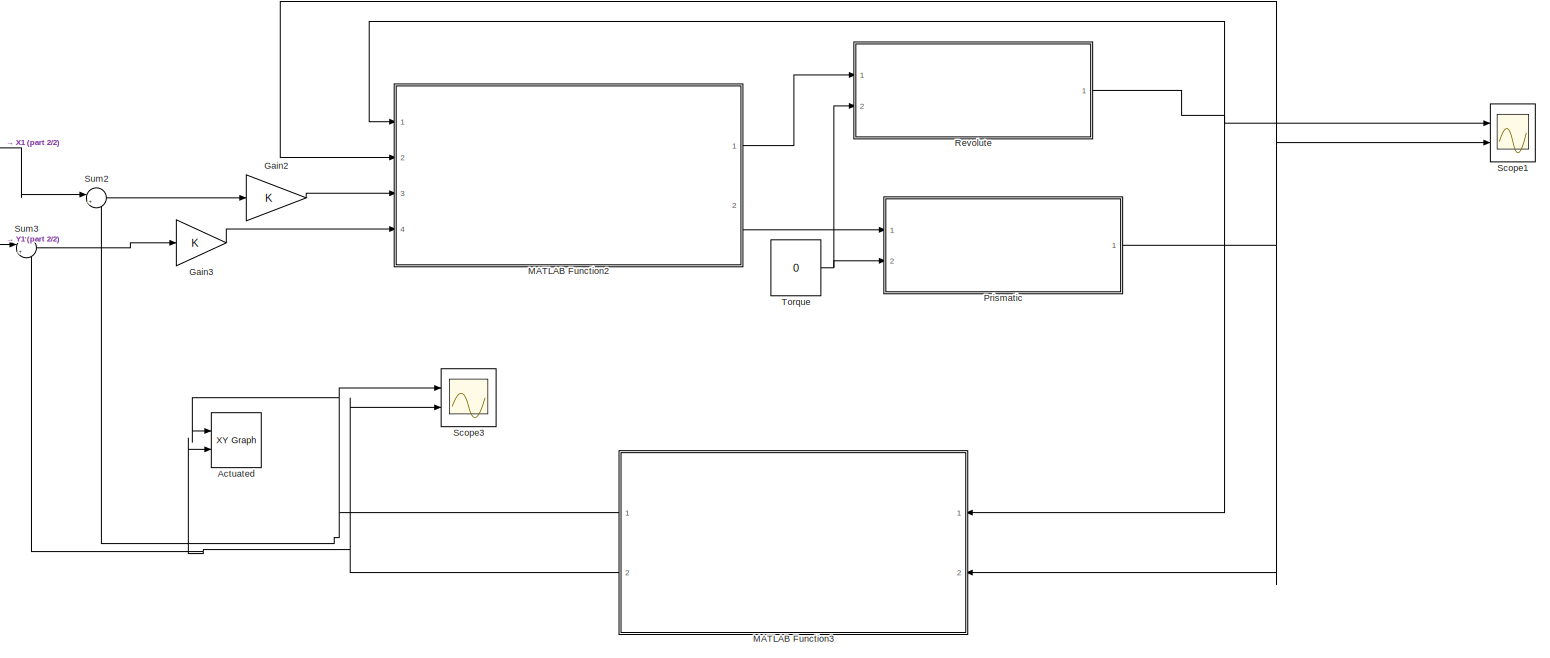
[diagram: root canvas - part 1/2, most of the canvas]
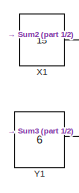
[diagram: root canvas - part 2/2, middle left region]
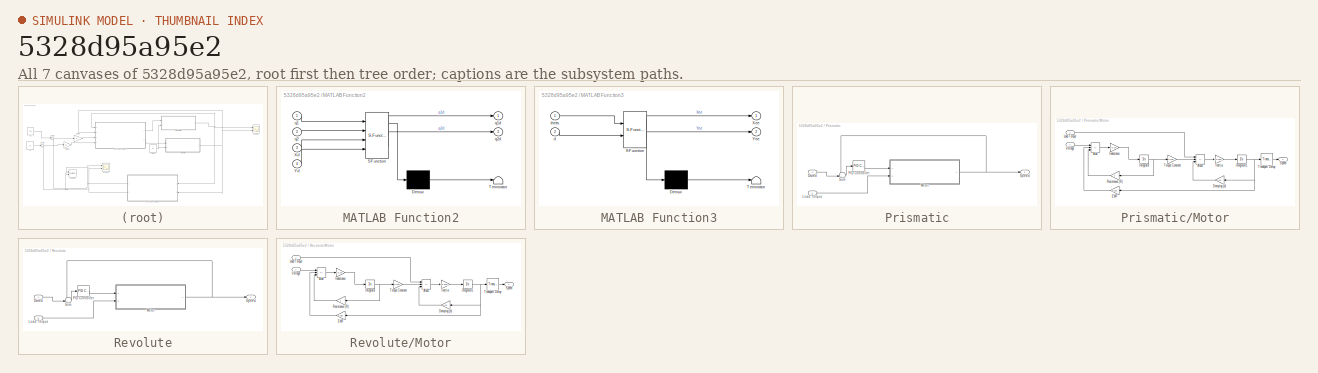
[diagram: thumbnail index - all 7 canvases of the model, root first then tree order]
MODEL slx_5328d95a95e2
KIND model
CONFIG AbsTol = auto
CONFIG EnableMultiTasking = off
CONFIG FixedStep = auto
CONFIG MaxStep = auto
CONFIG MinStep = auto
CONFIG RelTol = 1e-3
CONFIG SampleTimeConstraint = Unconstrained
CONFIG SolverName = VariableStepAuto
CONFIG StartTime = 0.0
CONFIG StopTime = 20
BLOCK [Reference] Actuated  REF=simulink/Sinks/XY Graph
  Ports = [2]
  SourceBlock = simulink/Sinks/XY Graph
  SourceProductBaseCode = SL
  SourceType = XY scope.
BLOCK [Gain] Gain2
BLOCK [Gain] Gain3
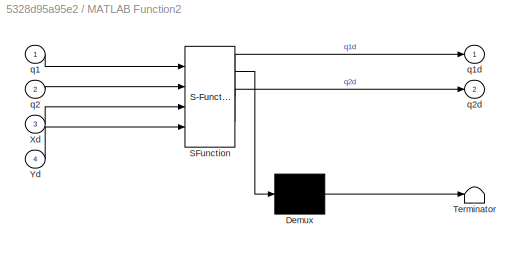
BLOCK [SubSystem] MATLAB Function2
  ErrorFcn = Stateflow.Translate.translate
  PermitHierarchicalResolution = ExplicitOnly
  Ports = [4, 2]
  RequestExecContextInheritance = off
  SFBlockType = MATLAB Function
  TreatAsAtomicUnit = on
BLOCK [Demux] MATLAB Function2/ Demux 
  Outputs = 1
  Ports = [1, 1]
BLOCK [S-Function] MATLAB Function2/ SFunction 
  EnableBusSupport = on
  FunctionName = sf_sfun
  PortCounts = [4 3]
  Ports = [4, 3]
  SFcnIsStateOwnerBlock = off
  SFunctionDeploymentMode = off
  Tag = Stateflow S-Function 3
BLOCK [Terminator] MATLAB Function2/ Terminator 
BLOCK [Inport] MATLAB Function2/Xd
  Port = 3
BLOCK [Inport] MATLAB Function2/Yd
  Port = 4
BLOCK [Inport] MATLAB Function2/q1
BLOCK [Outport] MATLAB Function2/q1d
BLOCK [Inport] MATLAB Function2/q2
  Port = 2
BLOCK [Outport] MATLAB Function2/q2d
  Port = 2
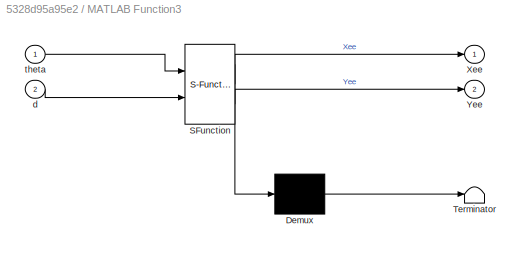
BLOCK [SubSystem] MATLAB Function3
  ErrorFcn = Stateflow.Translate.translate
  NameLocation = top
  PermitHierarchicalResolution = ExplicitOnly
  Ports = [2, 2]
  RequestExecContextInheritance = off
  SFBlockType = MATLAB Function
  TreatAsAtomicUnit = on
BLOCK [Demux] MATLAB Function3/ Demux 
  Outputs = 1
  Ports = [1, 1]
BLOCK [S-Function] MATLAB Function3/ SFunction 
  EnableBusSupport = on
  FunctionName = sf_sfun
  PortCounts = [2 3]
  Ports = [2, 3]
  SFcnIsStateOwnerBlock = off
  SFunctionDeploymentMode = off
  Tag = Stateflow S-Function 4
BLOCK [Terminator] MATLAB Function3/ Terminator 
BLOCK [Outport] MATLAB Function3/Xee
BLOCK [Outport] MATLAB Function3/Yee
  Port = 2
BLOCK [Inport] MATLAB Function3/d
  Port = 2
BLOCK [Inport] MATLAB Function3/theta
BLOCK [SubSystem] Prismatic
  Ports = [2, 1]
  RequestExecContextInheritance = off
BLOCK [Inport] Prismatic/Dsired
BLOCK [Inport] Prismatic/Load Torque 
  Port = 2
BLOCK [SubSystem] Prismatic/Motor
  Ports = [2, 1]
  RequestExecContextInheritance = off
BLOCK [Sum] Prismatic/Motor/Add
  IconShape = rectangular
  Inputs = +--
  Ports = [3, 1]
BLOCK [Sum] Prismatic/Motor/Add1
  IconShape = rectangular
  Inputs = -+-
  Ports = [3, 1]
BLOCK [Gain] Prismatic/Motor/Damping (b)
  Gain = 0.01
  NameLocation = top
BLOCK [Gain] Prismatic/Motor/EMF
  Gain = 0.235
  NameLocation = top
BLOCK [Gain] Prismatic/Motor/Inductance
  Gain = 1/0.23
BLOCK [Gain] Prismatic/Motor/Inertia 
  Gain = 1/0.000052
BLOCK [Integrator] Prismatic/Motor/Integrator
  Ports = [1, 1]
BLOCK [Integrator] Prismatic/Motor/Integrator1
  Ports = [1, 1]
BLOCK [Inport] Prismatic/Motor/Load Torque 
  Port = 2
BLOCK [Gain] Prismatic/Motor/Resistance (R)
  Gain = 2
  NameLocation = top
BLOCK [Outport] Prismatic/Motor/Speed 
  VectorParamsAs1DForOutWhenUnconnected = off
BLOCK [Gain] Prismatic/Motor/Torque Constant
  Gain = 0.235
BLOCK [TransportDelay] Prismatic/Motor/Transport Delay
  DelayTime = 0.01
  Ports = [1, 1]
BLOCK [Inport] Prismatic/Motor/Voltage
BLOCK [Reference] Prismatic/PID Controller  REF=pid_lib/PID Controller
  Ports = [1, 1]
  SourceBlock = pid_lib/PID Controller
  SourceProductBaseCode = SL
  SourceType = PID 1dof
BLOCK [Outport] Prismatic/Speed 
BLOCK [Sum] Prismatic/Sum
  Inputs = -+|
  Ports = [2, 1]
BLOCK [SubSystem] Revolute
  Ports = [2, 1]
  RequestExecContextInheritance = off
BLOCK [Inport] Revolute/Dsired
BLOCK [Inport] Revolute/Load Torque 
  Port = 2
BLOCK [SubSystem] Revolute/Motor
  Ports = [2, 1]
  RequestExecContextInheritance = off
BLOCK [Sum] Revolute/Motor/Add
  IconShape = rectangular
  Inputs = +--
  Ports = [3, 1]
BLOCK [Sum] Revolute/Motor/Add1
  IconShape = rectangular
  Inputs = -+-
  Ports = [3, 1]
BLOCK [Gain] Revolute/Motor/Damping (b)
  Gain = 0.01
  NameLocation = top
BLOCK [Gain] Revolute/Motor/EMF
  Gain = 0.235
  NameLocation = top
BLOCK [Gain] Revolute/Motor/Inductance
  Gain = 1/0.23
BLOCK [Gain] Revolute/Motor/Inertia 
  Gain = 1/0.000052
BLOCK [Integrator] Revolute/Motor/Integrator
  Ports = [1, 1]
BLOCK [Integrator] Revolute/Motor/Integrator1
  Ports = [1, 1]
BLOCK [Inport] Revolute/Motor/Load Torque 
  Port = 2
BLOCK [Gain] Revolute/Motor/Resistance (R)
  Gain = 2
  NameLocation = top
BLOCK [Outport] Revolute/Motor/Speed 
  VectorParamsAs1DForOutWhenUnconnected = off
BLOCK [Gain] Revolute/Motor/Torque Constant
  Gain = 0.235
BLOCK [TransportDelay] Revolute/Motor/Transport Delay
  DelayTime = 0.01
  Ports = [1, 1]
BLOCK [Inport] Revolute/Motor/Voltage
BLOCK [Reference] Revolute/PID Controller  REF=pid_lib/PID Controller
  Ports = [1, 1]
  SourceBlock = pid_lib/PID Controller
  SourceProductBaseCode = SL
  SourceType = PID 1dof
BLOCK [Outport] Revolute/Speed 
BLOCK [Sum] Revolute/Sum
  Inputs = -+|
  Ports = [2, 1]
BLOCK [Scope] Scope1
  Floating = off
  NumInputPorts = 2
  Ports = [2]
  ScopeSpecificationString = Simulink.scopes.TimeScopeBlockCfg('CurrentConfiguration', extmgr.ConfigurationSet(extmgr.Configuration('Core','General UI',true),extmgr.Configuration('Core','Source UI',true),extmgr.Configuration('Sources','WiredSimulink',true,'DataLoggingVariableName','ScopeData1'),extmgr.Configuration('Visuals','Time Domain',true,'SerializedDisplays',{struct('MinYLimReal','-2.72518','MaxYLimReal','24.52659','YLa...<+1498ch>
BLOCK [Scope] Scope3
  Floating = off
  NumInputPorts = 2
  Ports = [2]
  ScopeSpecificationString = Simulink.scopes.TimeScopeBlockCfg('CurrentConfiguration', extmgr.ConfigurationSet(extmgr.Configuration('Core','General UI',true),extmgr.Configuration('Core','Source UI',true),extmgr.Configuration('Sources','WiredSimulink',true,'DataLoggingVariableName','ScopeData2'),extmgr.Configuration('Visuals','Time Domain',true,'SerializedDisplays',{struct('MinYLimReal','-1.89301','MaxYLimReal','17.03705','YLa...<+1445ch>
BLOCK [Sum] Sum2
  Inputs = |+-
  Ports = [2, 1]
BLOCK [Sum] Sum3
  Inputs = |+-
  Ports = [2, 1]
BLOCK [Constant] Torque
  Value = 0
BLOCK [Constant] X1
  Value = 15
BLOCK [Constant] Y1
  Value = 6
LINE Gain2:1 -> MATLAB Function2:3
LINE Gain3:1 -> MATLAB Function2:4
LINE MATLAB Function2:1 -> Revolute:1
LINE MATLAB Function2:2 -> Prismatic:1
NET MATLAB Function3:1 -> Actuated:1, Scope3:1, Sum2:2
NET MATLAB Function3:2 -> Actuated:2, Scope3:2, Sum3:2
LINE Prismatic/Dsired:1 -> Prismatic/Sum:2
LINE Prismatic/Load Torque :1 -> Prismatic/Motor:2
LINE Prismatic/Motor/Add1:1 -> Prismatic/Motor/Inertia :1
LINE Prismatic/Motor/Add:1 -> Prismatic/Motor/Inductance:1
LINE Prismatic/Motor/Damping (b):1 -> Prismatic/Motor/Add1:3
LINE Prismatic/Motor/EMF:1 -> Prismatic/Motor/Add:2
LINE Prismatic/Motor/Inductance:1 -> Prismatic/Motor/Integrator:1
LINE Prismatic/Motor/Inertia :1 -> Prismatic/Motor/Integrator1:1
NET Prismatic/Motor/Integrator1:1 -> Prismatic/Motor/Damping (b):1, Prismatic/Motor/EMF:1, Prismatic/Motor/Transport Delay:1
NET Prismatic/Motor/Integrator:1 -> Prismatic/Motor/Resistance (R):1, Prismatic/Motor/Torque Constant:1
LINE Prismatic/Motor/Load Torque :1 -> Prismatic/Motor/Add1:1
LINE Prismatic/Motor/Resistance (R):1 -> Prismatic/Motor/Add:3
LINE Prismatic/Motor/Torque Constant:1 -> Prismatic/Motor/Add1:2
LINE Prismatic/Motor/Transport Delay:1 -> Prismatic/Motor/Speed :1
LINE Prismatic/Motor/Voltage:1 -> Prismatic/Motor/Add:1
NET Prismatic/Motor:1 -> Prismatic/Speed :1, Prismatic/Sum:1
LINE Prismatic/PID Controller:1 -> Prismatic/Motor:1
LINE Prismatic/Sum:1 -> Prismatic/PID Controller:1
NET Prismatic:1 -> MATLAB Function2:2, MATLAB Function3:2, Scope1:2
LINE Revolute/Dsired:1 -> Revolute/Sum:2
LINE Revolute/Load Torque :1 -> Revolute/Motor:2
LINE Revolute/Motor/Add1:1 -> Revolute/Motor/Inertia :1
LINE Revolute/Motor/Add:1 -> Revolute/Motor/Inductance:1
LINE Revolute/Motor/Damping (b):1 -> Revolute/Motor/Add1:3
LINE Revolute/Motor/EMF:1 -> Revolute/Motor/Add:2
LINE Revolute/Motor/Inductance:1 -> Revolute/Motor/Integrator:1
LINE Revolute/Motor/Inertia :1 -> Revolute/Motor/Integrator1:1
NET Revolute/Motor/Integrator1:1 -> Revolute/Motor/Damping (b):1, Revolute/Motor/EMF:1, Revolute/Motor/Transport Delay:1
NET Revolute/Motor/Integrator:1 -> Revolute/Motor/Resistance (R):1, Revolute/Motor/Torque Constant:1
LINE Revolute/Motor/Load Torque :1 -> Revolute/Motor/Add1:1
LINE Revolute/Motor/Resistance (R):1 -> Revolute/Motor/Add:3
LINE Revolute/Motor/Torque Constant:1 -> Revolute/Motor/Add1:2
LINE Revolute/Motor/Transport Delay:1 -> Revolute/Motor/Speed :1
LINE Revolute/Motor/Voltage:1 -> Revolute/Motor/Add:1
NET Revolute/Motor:1 -> Revolute/Speed :1, Revolute/Sum:1
LINE Revolute/PID Controller:1 -> Revolute/Motor:1
LINE Revolute/Sum:1 -> Revolute/PID Controller:1
NET Revolute:1 -> MATLAB Function2:1, MATLAB Function3:1, Scope1:1
LINE Sum2:1 -> Gain2:1
LINE Sum3:1 -> Gain3:1
NET Torque:1 -> Prismatic:2, Revolute:2
LINE X1:1 -> Sum2:1
LINE Y1:1 -> Sum3:1
note: NET lines group one-source signal fan-out (src -> all destinations, sorted); 1:1 wires keep LINE
CHART MATLAB Function2 states=1 transitions=1
  STATE_LABEL 'eML_blk_kernel()'
  STATE_LABEL 'SCRIPT:\nfunction [q1d,q2d] = RP_VELOCITY_INV(q1,q2,Xd,Yd)\nL1=0.5;\nJ = [-(L1+q2)*sind(q1),cosd(q1);\n      (L1+q2)*cosd(q1),sind(q1)];\n  Joint_Vel = (J\\[Xd;Yd]);\n  q1d = Joint_Vel(1);\n  q2d = Joint_Vel(2);\nend\n\n'
CHART MATLAB Function3 states=1 transitions=1
  STATE_LABEL 'eML_blk_kernel()'
  STATE_LABEL 'SCRIPT:\nfunction [Xee,Yee] = RP_position_forward_kinematics(theta,d)\nL1=0.5;  % Link Length from Problem\n\n  Xee = (L1+d)*cosd(theta);\n  Yee = (L1+d)*sind(theta);\n  \nend\n'
CHART  states=0 transitions=0
CHART  states=0 transitions=0
